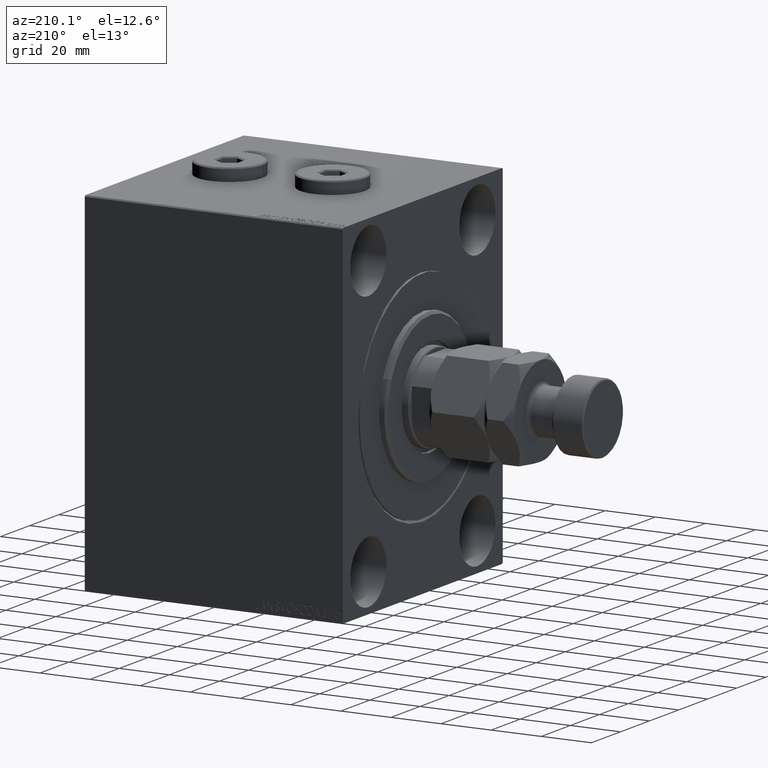
[diagram: clean part render]
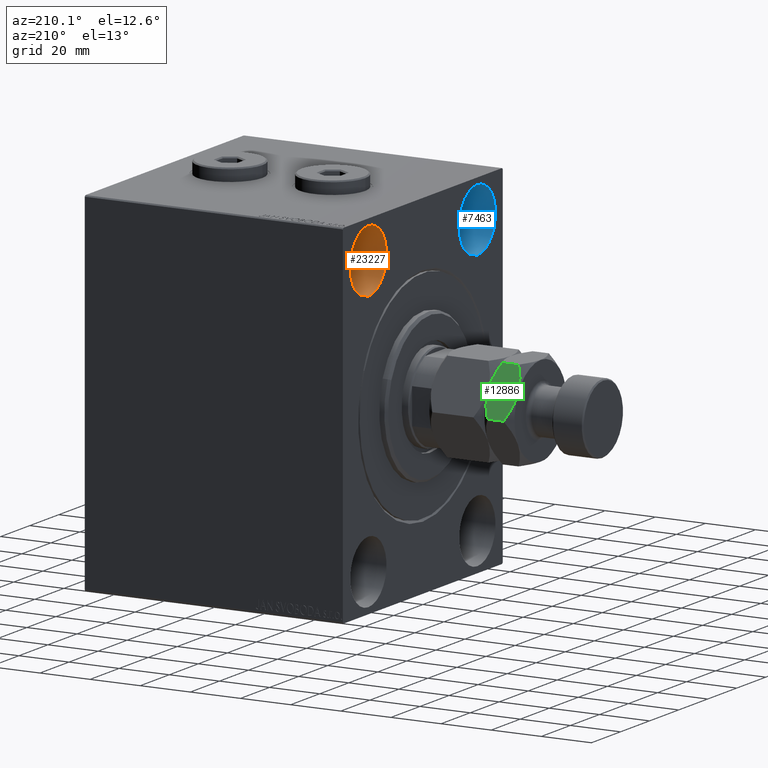
[diagram: same view with three faces highlighted in distinct colors, each labeled with its STEP entity id]
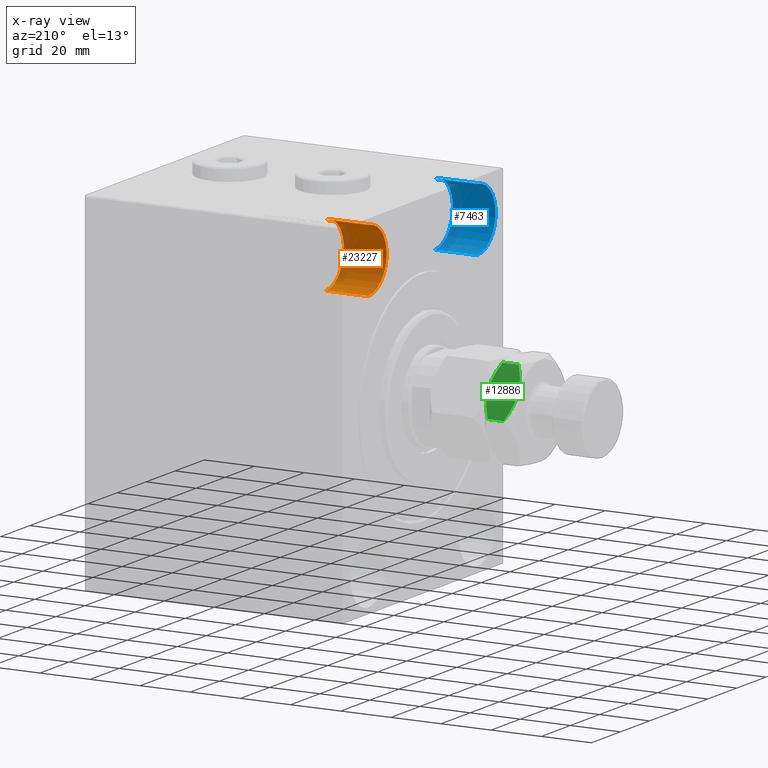
[diagram: x-ray of the same camera — body ghosted, the three highlighted faces saturated]
A machine part, auxiliary view with three faces highlighted in distinct colors.
The next image is the same camera in x-ray (body ghosted, the three faces saturated) — at least one of them is partly hidden behind the body in this view.
Their STEP definitions:

[orange] entity #23227 — the highlighted cylindrical surface (edge-blend (fillet) strip) has radius 12.5 mm, axis along (-1, -0, -0).
#164 = DIRECTION ( 'NONE',  ( 0.000000000000000000, 0.000000000000000000, 1.000000000000000000 ) ) ;
#3218 = ORIENTED_EDGE ( 'NONE', *, *, #26772, .F. ) ;
#5465 = CARTESIAN_POINT ( 'NONE',  ( 0.000000000000000000, 37.50000000000000711, 67.50000000000000000 ) ) ;
#5619 = CARTESIAN_POINT ( 'NONE',  ( 17.00000000000000000, 37.50000000000000711, 55.00000000000000711 ) ) ;
#6639 = VERTEX_POINT ( 'NONE', #37300 ) ;
#7853 = LINE ( 'NONE', #40101, #37335 ) ;
#8734 = LINE ( 'NONE', #8963, #22939 ) ;
#8963 = CARTESIAN_POINT ( 'NONE',  ( 17.00000000000000000, 37.50000000000000711, 67.50000000000000000 ) ) ;
#9974 = AXIS2_PLACEMENT_3D ( 'NONE', #42560, #38541, #42333 ) ;
#10335 = CYLINDRICAL_SURFACE ( 'NONE', #9974, 12.49999999999999645 ) ;
#12494 = DIRECTION ( 'NONE',  ( 0.000000000000000000, 0.000000000000000000, 1.000000000000000000 ) ) ;
#14504 = DIRECTION ( 'NONE',  ( -1.000000000000000000, -0.000000000000000000, -0.000000000000000000 ) ) ;
#15999 = VERTEX_POINT ( 'NONE', #5465 ) ;
#16116 = ORIENTED_EDGE ( 'NONE', *, *, #39299, .T. ) ;
#22939 = VECTOR ( 'NONE', #26985, 1000.000000000000000 ) ;
#23227 = ADVANCED_FACE ( 'NONE', ( #23841 ), #10335, .F. ) ;
#23841 = FACE_OUTER_BOUND ( 'NONE', #24378, .T. ) ;
#24378 = EDGE_LOOP ( 'NONE', ( #35394, #42903, #16116, #3218 ) ) ;
#26772 = EDGE_CURVE ( 'NONE', #33211, #15999, #8734, .T. ) ;
#26985 = DIRECTION ( 'NONE',  ( -1.000000000000000000, -0.000000000000000000, -0.000000000000000000 ) ) ;
#27155 = EDGE_CURVE ( 'NONE', #6639, #38306, #7853, .T. ) ;
#27464 = CARTESIAN_POINT ( 'NONE',  ( 17.00000000000000000, 37.50000000000000711, 67.50000000000000000 ) ) ;
#29162 = AXIS2_PLACEMENT_3D ( 'NONE', #5619, #38548, #12494 ) ;
#29986 = DIRECTION ( 'NONE',  ( -1.000000000000000000, 0.000000000000000000, 0.000000000000000000 ) ) ;
#30592 = CARTESIAN_POINT ( 'NONE',  ( 0.000000000000000000, 37.50000000000000711, 42.50000000000000711 ) ) ;
#33211 = VERTEX_POINT ( 'NONE', #27464 ) ;
#35229 = CIRCLE ( 'NONE', #29162, 12.49999999999999645 ) ;
#35305 = EDGE_CURVE ( 'NONE', #6639, #33211, #35229, .T. ) ;
#35394 = ORIENTED_EDGE ( 'NONE', *, *, #35305, .F. ) ;
#37300 = CARTESIAN_POINT ( 'NONE',  ( 17.00000000000000000, 37.50000000000000711, 42.50000000000000711 ) ) ;
#37335 = VECTOR ( 'NONE', #14504, 1000.000000000000000 ) ;
#38306 = VERTEX_POINT ( 'NONE', #30592 ) ;
#38541 = DIRECTION ( 'NONE',  ( -1.000000000000000000, -0.000000000000000000, -0.000000000000000000 ) ) ;
#38548 = DIRECTION ( 'NONE',  ( -1.000000000000000000, 0.000000000000000000, 0.000000000000000000 ) ) ;
#39299 = EDGE_CURVE ( 'NONE', #38306, #15999, #41882, .T. ) ;
#40101 = CARTESIAN_POINT ( 'NONE',  ( 17.00000000000000000, 37.50000000000000711, 42.50000000000000711 ) ) ;
#40654 = CARTESIAN_POINT ( 'NONE',  ( 0.000000000000000000, 37.50000000000000711, 55.00000000000000711 ) ) ;
#41882 = CIRCLE ( 'NONE', #42626, 12.49999999999999645 ) ;
#42333 = DIRECTION ( 'NONE',  ( 0.000000000000000000, 0.000000000000000000, 1.000000000000000000 ) ) ;
#42560 = CARTESIAN_POINT ( 'NONE',  ( 17.00000000000000000, 37.50000000000000711, 55.00000000000000711 ) ) ;
#42626 = AXIS2_PLACEMENT_3D ( 'NONE', #40654, #29986, #164 ) ;
#42903 = ORIENTED_EDGE ( 'NONE', *, *, #27155, .T. ) ;

[blue] entity #7463 — the highlighted cylindrical surface (edge-blend (fillet) strip) has radius 12.5 mm, axis along (-1, -0, -0).
#2519 = CIRCLE ( 'NONE', #33513, 12.49999999999999645 ) ;
#2939 = DIRECTION ( 'NONE',  ( 0.000000000000000000, 0.000000000000000000, 1.000000000000000000 ) ) ;
#3325 = VECTOR ( 'NONE', #5209, 1000.000000000000000 ) ;
#5209 = DIRECTION ( 'NONE',  ( -1.000000000000000000, -0.000000000000000000, -0.000000000000000000 ) ) ;
#6817 = CARTESIAN_POINT ( 'NONE',  ( 0.000000000000000000, -37.50000000000000711, 67.50000000000000000 ) ) ;
#7463 = ADVANCED_FACE ( 'NONE', ( #33004 ), #22086, .F. ) ;
#9690 = LINE ( 'NONE', #37664, #3325 ) ;
#10689 = ORIENTED_EDGE ( 'NONE', *, *, #19445, .T. ) ;
#10738 = DIRECTION ( 'NONE',  ( 0.000000000000000000, 0.000000000000000000, 1.000000000000000000 ) ) ;
#14114 = EDGE_CURVE ( 'NONE', #22387, #33512, #15017, .T. ) ;
#14760 = CARTESIAN_POINT ( 'NONE',  ( 17.00000000000000000, -37.50000000000000711, 42.50000000000000711 ) ) ;
#15017 = CIRCLE ( 'NONE', #17296, 12.49999999999999645 ) ;
#15466 = LINE ( 'NONE', #22554, #24217 ) ;
#17296 = AXIS2_PLACEMENT_3D ( 'NONE', #17384, #20236, #2939 ) ;
#17384 = CARTESIAN_POINT ( 'NONE',  ( 17.00000000000000000, -37.50000000000000711, 55.00000000000000711 ) ) ;
#19445 = EDGE_CURVE ( 'NONE', #22387, #26445, #15466, .T. ) ;
#20236 = DIRECTION ( 'NONE',  ( -1.000000000000000000, 0.000000000000000000, 0.000000000000000000 ) ) ;
#21639 = DIRECTION ( 'NONE',  ( -1.000000000000000000, -0.000000000000000000, -0.000000000000000000 ) ) ;
#22086 = CYLINDRICAL_SURFACE ( 'NONE', #42477, 12.49999999999999645 ) ;
#22387 = VERTEX_POINT ( 'NONE', #14760 ) ;
#22554 = CARTESIAN_POINT ( 'NONE',  ( 17.00000000000000000, -37.50000000000000711, 42.50000000000000711 ) ) ;
#23802 = DIRECTION ( 'NONE',  ( 0.000000000000000000, 0.000000000000000000, 1.000000000000000000 ) ) ;
#24217 = VECTOR ( 'NONE', #29920, 1000.000000000000000 ) ;
#25805 = EDGE_CURVE ( 'NONE', #26445, #40092, #2519, .T. ) ;
#26374 = ORIENTED_EDGE ( 'NONE', *, *, #14114, .F. ) ;
#26445 = VERTEX_POINT ( 'NONE', #34856 ) ;
#27635 = ORIENTED_EDGE ( 'NONE', *, *, #25805, .T. ) ;
#28762 = CARTESIAN_POINT ( 'NONE',  ( 17.00000000000000000, -37.50000000000000711, 55.00000000000000711 ) ) ;
#29920 = DIRECTION ( 'NONE',  ( -1.000000000000000000, -0.000000000000000000, -0.000000000000000000 ) ) ;
#31971 = EDGE_CURVE ( 'NONE', #33512, #40092, #9690, .T. ) ;
#33004 = FACE_OUTER_BOUND ( 'NONE', #43457, .T. ) ;
#33512 = VERTEX_POINT ( 'NONE', #44637 ) ;
#33513 = AXIS2_PLACEMENT_3D ( 'NONE', #37092, #46083, #23802 ) ;
#34856 = CARTESIAN_POINT ( 'NONE',  ( 0.000000000000000000, -37.50000000000000711, 42.50000000000000711 ) ) ;
#37092 = CARTESIAN_POINT ( 'NONE',  ( 0.000000000000000000, -37.50000000000000711, 55.00000000000000711 ) ) ;
#37664 = CARTESIAN_POINT ( 'NONE',  ( 17.00000000000000000, -37.50000000000000711, 67.50000000000000000 ) ) ;
#39165 = ORIENTED_EDGE ( 'NONE', *, *, #31971, .F. ) ;
#40092 = VERTEX_POINT ( 'NONE', #6817 ) ;
#42477 = AXIS2_PLACEMENT_3D ( 'NONE', #28762, #21639, #10738 ) ;
#43457 = EDGE_LOOP ( 'NONE', ( #26374, #10689, #27635, #39165 ) ) ;
#44637 = CARTESIAN_POINT ( 'NONE',  ( 17.00000000000000000, -37.50000000000000711, 67.50000000000000000 ) ) ;
#46083 = DIRECTION ( 'NONE',  ( -1.000000000000000000, 0.000000000000000000, 0.000000000000000000 ) ) ;

[green] entity #12886 — the highlighted planar face has unit normal (-0, -0.866, -0.5).
#527 = CARTESIAN_POINT ( 'NONE',  ( 8.999999999999998224, 15.58845726811989074, 34.00000000000000000 ) ) ;
#2498 = CARTESIAN_POINT ( 'NONE',  ( 16.58866960374794530, 11.20713682960488100, 32.03022229336509952 ) ) ;
#2708 = CARTESIAN_POINT ( 'NONE',  ( 5.858009779716799592, 17.40248616759156874, 22.34056310225525621 ) ) ;
#2738 = CARTESIAN_POINT ( 'NONE',  ( 10.58425150785354418, 14.67378923359657783, 33.91305310988184374 ) ) ;
#3512 = CARTESIAN_POINT ( 'NONE',  ( 9.000000000000000000, 15.58845726811989074, 22.00000000000000000 ) ) ;
#6012 = CARTESIAN_POINT ( 'NONE',  ( 17.99999999999999645, 10.39230484541326227, 31.21539030917348612 ) ) ;
#7410 = CARTESIAN_POINT ( 'NONE',  ( 17.99999999999999645, 10.39230484541326227, 34.00000000000000000 ) ) ;
#7730 = LINE ( 'NONE', #33085, #41923 ) ;
#10305 = CARTESIAN_POINT ( 'NONE',  ( 9.394125676616228660, 15.36090870263096697, 34.00000000000000711 ) ) ;
#10497 = CARTESIAN_POINT ( 'NONE',  ( 7.415748492146456705, 16.50312530264319832, 22.08694689011815271 ) ) ;
#12886 = ADVANCED_FACE ( 'NONE', ( #38526 ), #39230, .F. ) ;
#12928 = CARTESIAN_POINT ( 'NONE',  ( 9.000000000000000000, 15.58845726811989074, 22.00000000000000000 ) ) ;
#13402 = EDGE_CURVE ( 'NONE', #21883, #22148, #39876, .T. ) ;
#13636 = CARTESIAN_POINT ( 'NONE',  ( -4.679827342117714303E-16, 20.78460969082652454, 31.21539030917348612 ) ) ;
#13826 = CARTESIAN_POINT ( 'NONE',  ( 2.854601888853811165, 19.13650452186756112, 23.27738307788986916 ) ) ;
#14294 = CARTESIAN_POINT ( 'NONE',  ( 8.209538469370126990, 16.04483044561309413, 22.01733285647408778 ) ) ;
#15262 = ORIENTED_EDGE ( 'NONE', *, *, #39557, .F. ) ;
#16715 = B_SPLINE_CURVE_WITH_KNOTS ( 'NONE', 3,
 ( #34958, #2498, #42297, #35200, #46311, #24511, #2738, #17179, #10305, #39211 ),
 .UNSPECIFIED., .F., .F.,
 ( 4, 2, 2, 2, 4 ),
 ( 2.544307986796311447E-07, 0.005386537354063074268, 0.008079678815695273339, 0.009426249546511370273, 0.01077282027732746721 ),
 .UNSPECIFIED. ) ;
#17012 = ORIENTED_EDGE ( 'NONE', *, *, #22266, .F. ) ;
#17179 = CARTESIAN_POINT ( 'NONE',  ( 9.790461530629874787, 15.13208409062668913, 33.98266714352592288 ) ) ;
#17188 = CARTESIAN_POINT ( 'NONE',  ( 8.999999999999998224, 15.58845726811989074, 34.00000000000000000 ) ) ;
#20284 = DIRECTION ( 'NONE',  ( -0.5000000000000001110, -0.8660254037844387076, 0.000000000000000000 ) ) ;
#20875 = VERTEX_POINT ( 'NONE', #12928 ) ;
#20973 = CARTESIAN_POINT ( 'NONE',  ( 2.860715810337965070, 19.13297464765287259, 32.72742529849575988 ) ) ;
#21045 = CARTESIAN_POINT ( 'NONE',  ( 12.10430252359947723, 13.79618737047369947, 22.27639590712157869 ) ) ;
#21267 = ORIENTED_EDGE ( 'NONE', *, *, #40114, .F. ) ;
#21426 = CARTESIAN_POINT ( 'NONE',  ( 7.434539168300456247, 16.49227650070744033, 34.00000000000000000 ) ) ;
#21499 = CARTESIAN_POINT ( 'NONE',  ( 15.13928418966202649, 12.04393988858690179, 23.27257470150423302 ) ) ;
#21883 = VERTEX_POINT ( 'NONE', #6012 ) ;
#22148 = VERTEX_POINT ( 'NONE', #41914 ) ;
#22266 = EDGE_CURVE ( 'NONE', #39341, #20875, #29149, .T. ) ;
#22648 = AXIS2_PLACEMENT_3D ( 'NONE', #27395, #20284, #31420 ) ;
#24231 = VERTEX_POINT ( 'NONE', #36162 ) ;
#24511 = CARTESIAN_POINT ( 'NONE',  ( 10.97671975407794953, 14.44719758599053705, 33.86127740090142879 ) ) ;
#25512 = DIRECTION ( 'NONE',  ( -0.000000000000000000, -0.000000000000000000, -1.000000000000000000 ) ) ;
#25959 = CARTESIAN_POINT ( 'NONE',  ( -4.679827342117714303E-16, 20.78460969082652454, 24.78460969082651744 ) ) ;
#26427 = B_SPLINE_CURVE_WITH_KNOTS ( 'NONE', 3,
 ( #17188, #21426, #28562, #20973, #46090, #13636 ),
 .UNSPECIFIED., .F., .F.,
 ( 4, 2, 4 ),
 ( 0.01077282027732746721, 0.01612137750481873119, 0.02146993473230999344 ),
 .UNSPECIFIED. ) ;
#27123 = B_SPLINE_CURVE_WITH_KNOTS ( 'NONE', 3,
 ( #3512, #28631, #21045, #21499, #29095, #39761 ),
 .UNSPECIFIED., .F., .F.,
 ( 4, 2, 4 ),
 ( 0.01077282027732747241, 0.01612137750481873466, 0.02146993473230999691 ),
 .UNSPECIFIED. ) ;
#27395 = CARTESIAN_POINT ( 'NONE',  ( 17.99999999999999645, 10.39230484541326227, 34.00000000000000000 ) ) ;
#27660 = EDGE_CURVE ( 'NONE', #20875, #22148, #27123, .T. ) ;
#28291 = CARTESIAN_POINT ( 'NONE',  ( 7.023280245922046916, 16.72971695024925154, 22.13872259909857121 ) ) ;
#28562 = CARTESIAN_POINT ( 'NONE',  ( 5.895697476400520998, 17.38072716576608201, 33.72360409287841065 ) ) ;
#28570 = EDGE_CURVE ( 'NONE', #38172, #24231, #26427, .T. ) ;
#28631 = CARTESIAN_POINT ( 'NONE',  ( 10.56546083169953754, 14.68463803553234648, 22.00000000000000000 ) ) ;
#28749 = CARTESIAN_POINT ( 'NONE',  ( 9.000000000000000000, 15.58845726811989074, 22.00000000000000000 ) ) ;
#29095 = CARTESIAN_POINT ( 'NONE',  ( 16.59030399953601176, 11.20619321075668218, 23.97072132548304779 ) ) ;
#29149 = B_SPLINE_CURVE_WITH_KNOTS ( 'NONE', 3,
 ( #46753, #42268, #13826, #35172, #2708, #28291, #10497, #14294, #42744, #28749 ),
 .UNSPECIFIED., .F., .F.,
 ( 4, 2, 2, 2, 4 ),
 ( 2.544307986814885820E-07, 0.005386537354063076870, 0.008079678815695275074, 0.009426249546511373742, 0.01077282027732747241 ),
 .UNSPECIFIED. ) ;
#31420 = DIRECTION ( 'NONE',  ( 0.8660254037844385966, -0.5000000000000000000, 0.000000000000000000 ) ) ;
#33085 = CARTESIAN_POINT ( 'NONE',  ( -2.339913671058857151E-16, 20.78460969082652454, 34.00000000000000000 ) ) ;
#34958 = CARTESIAN_POINT ( 'NONE',  ( 17.99999999999999645, 10.39230484541326227, 31.21539030917348612 ) ) ;
#35172 = CARTESIAN_POINT ( 'NONE',  ( 5.097327296964724752, 17.84166640377631197, 22.53708555582900885 ) ) ;
#35200 = CARTESIAN_POINT ( 'NONE',  ( 12.90267270303527525, 13.33524813246346952, 33.46291444417099115 ) ) ;
#35624 = DIRECTION ( 'NONE',  ( -0.000000000000000000, -0.000000000000000000, -1.000000000000000000 ) ) ;
#36162 = CARTESIAN_POINT ( 'NONE',  ( -4.679827342117714303E-16, 20.78460969082652454, 31.21539030917348612 ) ) ;
#38172 = VERTEX_POINT ( 'NONE', #527 ) ;
#38526 = FACE_OUTER_BOUND ( 'NONE', #45488, .T. ) ;
#39211 = CARTESIAN_POINT ( 'NONE',  ( 8.999999999999998224, 15.58845726811989074, 34.00000000000000000 ) ) ;
#39230 = PLANE ( 'NONE',  #22648 ) ;
#39341 = VERTEX_POINT ( 'NONE', #25959 ) ;
#39557 = EDGE_CURVE ( 'NONE', #21883, #38172, #16715, .T. ) ;
#39761 = CARTESIAN_POINT ( 'NONE',  ( 17.99999999999999645, 10.39230484541326227, 24.78460969082651744 ) ) ;
#39876 = LINE ( 'NONE', #7410, #45367 ) ;
#40114 = EDGE_CURVE ( 'NONE', #24231, #39341, #7730, .T. ) ;
#40132 = ORIENTED_EDGE ( 'NONE', *, *, #13402, .T. ) ;
#41664 = ORIENTED_EDGE ( 'NONE', *, *, #27660, .F. ) ;
#41914 = CARTESIAN_POINT ( 'NONE',  ( 17.99999999999999645, 10.39230484541326227, 24.78460969082651744 ) ) ;
#41923 = VECTOR ( 'NONE', #25512, 1000.000000000000000 ) ;
#42268 = CARTESIAN_POINT ( 'NONE',  ( 1.411330396252048036, 19.96977770663490404, 23.96977770663490404 ) ) ;
#42297 = CARTESIAN_POINT ( 'NONE',  ( 15.14539811114618217, 12.04041001437222214, 32.72261692211013440 ) ) ;
#42744 = CARTESIAN_POINT ( 'NONE',  ( 8.605874323383769564, 15.81600583360881807, 22.00000000000000000 ) ) ;
#45367 = VECTOR ( 'NONE', #35624, 1000.000000000000000 ) ;
#45488 = EDGE_LOOP ( 'NONE', ( #17012, #21267, #46181, #15262, #40132, #41664 ) ) ;
#46090 = CARTESIAN_POINT ( 'NONE',  ( 1.409696000463986243, 19.97072132548310108, 32.02927867451695931 ) ) ;
#46181 = ORIENTED_EDGE ( 'NONE', *, *, #28570, .F. ) ;
#46311 = CARTESIAN_POINT ( 'NONE',  ( 12.14199022028319597, 13.77442836864821629, 33.65943689774473313 ) ) ;
#46753 = CARTESIAN_POINT ( 'NONE',  ( -4.679827342117714303E-16, 20.78460969082652454, 24.78460969082651744 ) ) ;